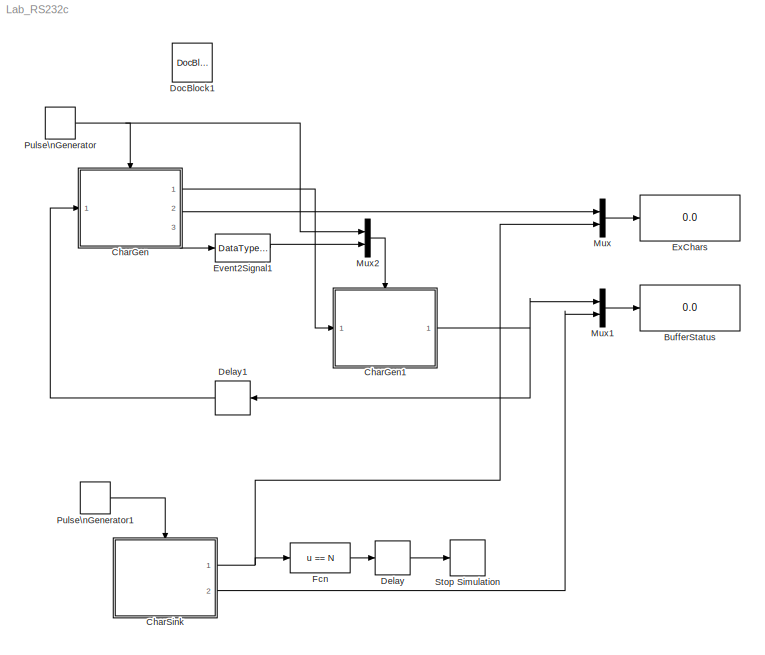
MODEL Lab_RS232c
KIND model
CONFIG PreLoadFcn = clear all;\nclose all;\nclc;\n\nTxs = 1;          % Gen clk (period)\nTrs = 1;           % Sink clk (period)\n\nN = 17;    % No of characters to exchange\n\n\n
CONFIG StartFcn = clc;\nclose all;\n\nTxBuffer = zeros(1,N);   % Tx characters tmp array\nRxBuffer = ones(1,N);   % Rx characters tmp array\n\nRS232_Start;\n\n
CONFIG StopFcn = RS232_End;\n\nif size(TxBuffer) == size(RxBuffer)\n  if TxBuffer == RxBuffer\n    disp('OK');\n  else\n     disp('Error');\n     plot(TxBuffer-RxBuffer, 'o');\n  end\nelse\n     disp('Error: Incorrect No of characters');\nend\n\n
BLOCK [Display] BufferStatus
  Decimation = 1
  Lockdown = off
  Ports = [1]
  SID = 37
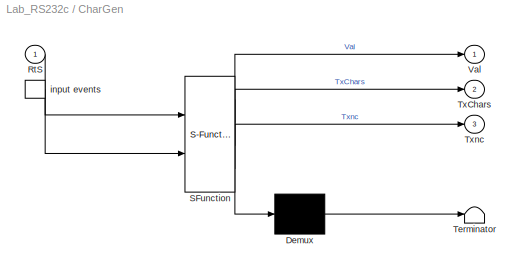
BLOCK [SubSystem] CharGen
  ErrorFcn = Stateflow.Translate.translate
  FunctionWithSeparateData = off
  MaskDescription = Stateflow diagram
  MaskDisplay = plot(sf('Private','sfblk','xIcon'),sf('Private','sfblk','yIcon'));text(0.5,0,sf('Private', 'sfblk', 'tIcon'),'HorizontalAl','Center','VerticalAl','Bottom');
  MaskHideContents = off
  MaskIconFrame = off
  MaskIconOpaque = off
  MaskIconRotate = none
  MaskIconUnits = normalized
  MaskPortRotate = default
  MaskSelfModifiable = on
  MaskType = Stateflow
  MinAlgLoopOccurrences = off
  Opaque = off
  PermitHierarchicalResolution = ExplicitOnly
  Ports = [1, 3, 0, 1]
  PropExecContextOutsideSubsystem = off
  RTWSystemCode = Auto
  RequestExecContextInheritance = off
  SFBlockType = Chart
  SID = 1
  TreatAsAtomicUnit = on
BLOCK [Demux] CharGen/ Demux 
  Outputs = 1
  Ports = [1, 1]
  SID = 1::22
BLOCK [S-Function] CharGen/ SFunction 
  EnableBusSupport = on
  FunctionName = sf_sfun
  PortCounts = [2 4]
  Ports = [2, 4]
  SID = 1::21
  Tag = Stateflow S-Function Lab_RS232c 1
BLOCK [Terminator] CharGen/ Terminator 
  SID = 1::50
BLOCK [TriggerPort] CharGen/ input events 
  Ports = [0, 1]
  SID = 1::29
  ShowOutputPort = on
  StatesWhenEnabling = held
BLOCK [Inport] CharGen/RtS
  IconDisplay = Port number
  SID = 1::48
BLOCK [Outport] CharGen/TxChars
  IconDisplay = Port number
  Port = 2
  SID = 1::45
BLOCK [Outport] CharGen/Txnc
  IconDisplay = Port number
  Port = 3
  SID = 1::49
BLOCK [Outport] CharGen/Val
  IconDisplay = Port number
  SID = 1::47
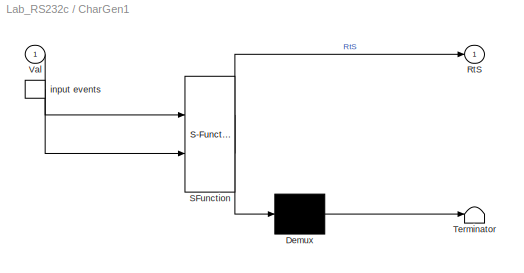
BLOCK [SubSystem] CharGen1
  ErrorFcn = Stateflow.Translate.translate
  FunctionWithSeparateData = off
  MaskDescription = Stateflow diagram
  MaskDisplay = plot(sf('Private','sfblk','xIcon'),sf('Private','sfblk','yIcon'));text(0.5,0,sf('Private', 'sfblk', 'tIcon'),'HorizontalAl','Center','VerticalAl','Bottom');
  MaskHideContents = off
  MaskIconFrame = off
  MaskIconOpaque = off
  MaskIconRotate = none
  MaskIconUnits = normalized
  MaskPortRotate = default
  MaskSelfModifiable = on
  MaskType = Stateflow
  MinAlgLoopOccurrences = off
  Opaque = off
  PermitHierarchicalResolution = ExplicitOnly
  Ports = [1, 1, 0, 1]
  PropExecContextOutsideSubsystem = off
  RTWSystemCode = Auto
  RequestExecContextInheritance = off
  SFBlockType = Chart
  SID = 45
  TreatAsAtomicUnit = on
BLOCK [Demux] CharGen1/ Demux 
  Outputs = 1
  Ports = [1, 1]
  SID = 45::22
BLOCK [S-Function] CharGen1/ SFunction 
  EnableBusSupport = on
  FunctionName = sf_sfun
  PortCounts = [2 2]
  Ports = [2, 2]
  SID = 45::21
  Tag = Stateflow S-Function Lab_RS232c 3
BLOCK [Terminator] CharGen1/ Terminator 
  SID = 45::44
BLOCK [TriggerPort] CharGen1/ input events 
  Ports = [0, 1]
  SID = 45::29
  ShowOutputPort = on
  StatesWhenEnabling = held
  TriggerType = either
BLOCK [Outport] CharGen1/RtS
  IconDisplay = Port number
  SID = 45::46
BLOCK [Inport] CharGen1/Val
  IconDisplay = Port number
  SID = 45::47
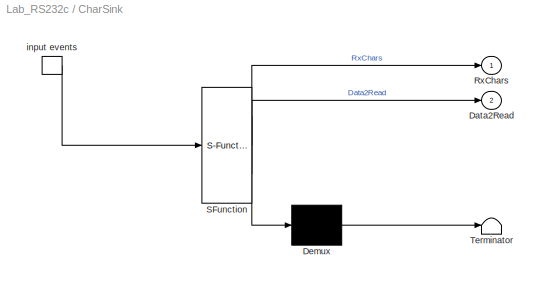
BLOCK [SubSystem] CharSink
  ErrorFcn = Stateflow.Translate.translate
  FunctionWithSeparateData = off
  MaskDescription = Stateflow diagram
  MaskDisplay = plot(sf('Private','sfblk','xIcon'),sf('Private','sfblk','yIcon'));text(0.5,0,sf('Private', 'sfblk', 'tIcon'),'HorizontalAl','Center','VerticalAl','Bottom');
  MaskHideContents = off
  MaskIconFrame = off
  MaskIconOpaque = off
  MaskIconRotate = none
  MaskIconUnits = normalized
  MaskPortRotate = default
  MaskSelfModifiable = on
  MaskType = Stateflow
  MinAlgLoopOccurrences = off
  Opaque = off
  PermitHierarchicalResolution = ExplicitOnly
  Ports = [0, 2, 0, 1]
  PropExecContextOutsideSubsystem = off
  RTWSystemCode = Auto
  RequestExecContextInheritance = off
  SFBlockType = Chart
  SID = 28
  TreatAsAtomicUnit = on
BLOCK [Demux] CharSink/ Demux 
  Outputs = 1
  Ports = [1, 1]
  SID = 28::22
BLOCK [S-Function] CharSink/ SFunction 
  EnableBusSupport = on
  FunctionName = sf_sfun
  PortCounts = [1 3]
  Ports = [1, 3]
  SID = 28::21
  Tag = Stateflow S-Function Lab_RS232c 2
BLOCK [Terminator] CharSink/ Terminator 
  SID = 28::44
BLOCK [TriggerPort] CharSink/ input events 
  Ports = [0, 1]
  SID = 28::29
  ShowOutputPort = on
  StatesWhenEnabling = held
BLOCK [Outport] CharSink/Data2Read
  IconDisplay = Port number
  Port = 2
  SID = 28::47
BLOCK [Outport] CharSink/RxChars
  IconDisplay = Port number
  SID = 28::46
BLOCK [Delay] Delay
  DelayLength = 1
  ExternalReset = None
  InputPortMap = u0
  Ports = [1, 1]
  SID = 44
  SampleTime = Trs
BLOCK [Delay] Delay1
  DelayLength = 1
  ExternalReset = None
  InputPortMap = u0
  Ports = [1, 1]
  SID = 49
  SampleTime = Trs
BLOCK [Reference] DocBlock1  REF=simulink/Model-Wide\nUtilities/DocBlock
  DocumentType = Text
  Ports = []
  SID = 15
  SourceBlock = simulink/Model-Wide\nUtilities/DocBlock
  SourceType = DocBlock
  UserData = DataTag0
  UserDataPersistent = on
BLOCK [DataTypeConversion] Event2Signal1
  RndMeth = Floor
  SID = 48
  SaturateOnIntegerOverflow = off
BLOCK [Display] ExChars
  Decimation = 1
  Lockdown = off
  Ports = [1]
  SID = 34
BLOCK [Fcn] Fcn
  Expr = u == N
  SID = 36
BLOCK [Mux] Mux
  DisplayOption = bar
  Inputs = 2
  Ports = [2, 1]
  SID = 35
BLOCK [Mux] Mux1
  DisplayOption = bar
  Inputs = 2
  Ports = [2, 1]
  SID = 38
BLOCK [Mux] Mux2
  DisplayOption = bar
  Inputs = 2
  Ports = [2, 1]
  SID = 46
BLOCK [DiscretePulseGenerator] Pulse\nGenerator
  Period = Txs
  PhaseDelay = Txs/2
  Ports = [0, 1]
  PulseType = Time based
  PulseWidth = 50
  SID = 4
BLOCK [DiscretePulseGenerator] Pulse\nGenerator1
  Period = Trs
  PhaseDelay = Trs/2
  Ports = [0, 1]
  PulseType = Time based
  PulseWidth = 50
  SID = 29
BLOCK [Stop] Stop Simulation
  SID = 30
LINE CharGen/ Demux :1 -> CharGen/ Terminator :1
LINE CharGen/ SFunction :1 -> CharGen/ Demux :1
LINE CharGen/ SFunction :2 -> CharGen/Val:1
LINE CharGen/ SFunction :3 -> CharGen/TxChars:1
LINE CharGen/ SFunction :4 -> CharGen/Txnc:1
LINE CharGen/ input events :1 -> CharGen/ SFunction :2
LINE CharGen/RtS:1 -> CharGen/ SFunction :1
LINE CharGen1/ Demux :1 -> CharGen1/ Terminator :1
LINE CharGen1/ SFunction :1 -> CharGen1/ Demux :1
LINE CharGen1/ SFunction :2 -> CharGen1/RtS:1
LINE CharGen1/ input events :1 -> CharGen1/ SFunction :2
LINE CharGen1/Val:1 -> CharGen1/ SFunction :1
NET CharGen1:1 -> Delay1:1, Mux1:1
LINE CharGen:1 -> CharGen1:1
LINE CharGen:2 -> Mux:1
LINE CharGen:3 -> Event2Signal1:1
LINE CharSink/ Demux :1 -> CharSink/ Terminator :1
LINE CharSink/ SFunction :1 -> CharSink/ Demux :1
LINE CharSink/ SFunction :2 -> CharSink/RxChars:1
LINE CharSink/ SFunction :3 -> CharSink/Data2Read:1
LINE CharSink/ input events :1 -> CharSink/ SFunction :1
NET CharSink:1 -> Fcn:1, Mux:2
LINE CharSink:2 -> Mux1:2
LINE Delay1:1 -> CharGen:1
LINE Delay:1 -> Stop Simulation:1
LINE Event2Signal1:1 -> Mux2:2
LINE Fcn:1 -> Delay:1
LINE Mux1:1 -> BufferStatus:1
LINE Mux2:1 -> CharGen1:trigger
LINE Mux:1 -> ExChars:1
LINE Pulse\nGenerator1:1 -> CharSink:trigger
NET Pulse\nGenerator:1 -> CharGen:trigger, Mux2:1
note: NET lines group one-source signal fan-out (src -> all destinations, sorted); 1:1 wires keep LINE
CHART CharGen states=3 transitions=4
  STATE_LABEL 'GenState\\nen: lv++;\\n      Val = ml.uint8(ml.rand(1)*255);\\n      ml.TxBuffer[lv] = Val;\\n      Txnc;\\n      TxChars = lv;'
  STATE_LABEL 'IniState\\nen: lv = 0;'
  STATE_LABEL 'NoAct'
CHART CharSink states=3 transitions=6
  STATE_LABEL "SinkState\\nen: ml('DIn_2');\\n      Val = ml.d2r_s2;\\n      lv++;\\n      ml.RxBuffer[lv] = Val;\\n      RxChars = lv;"
  STATE_LABEL 'IniState\\nen: lv = 0;'
  STATE_LABEL 'Idle'
CHART CharGen1 states=2 transitions=5
  STATE_LABEL "TxState\\nen: ml.d2o_s1 = Val;\\n      ml('DOut_1');"
  STATE_LABEL 'IniState'
